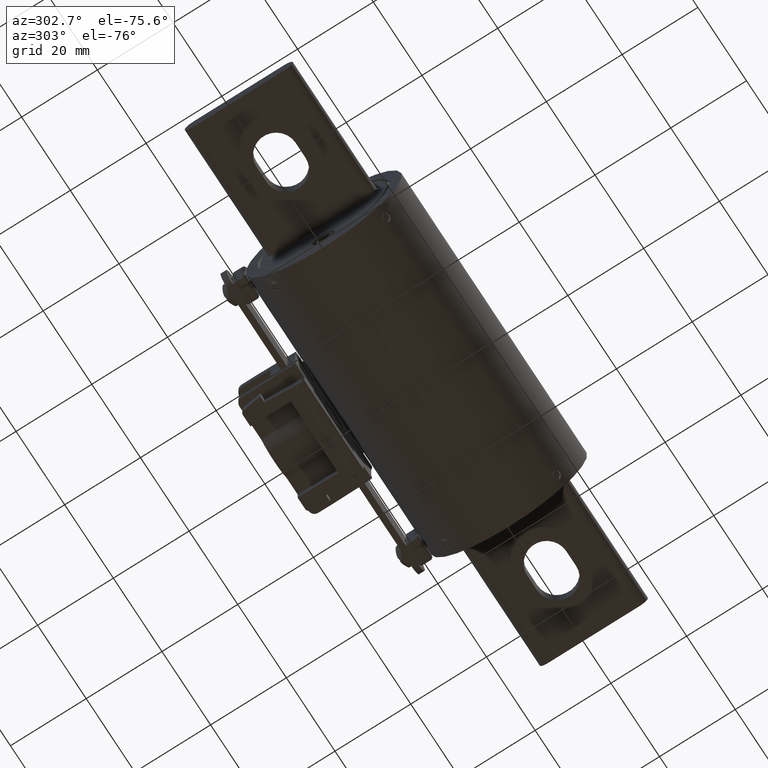
[diagram: clean part render]
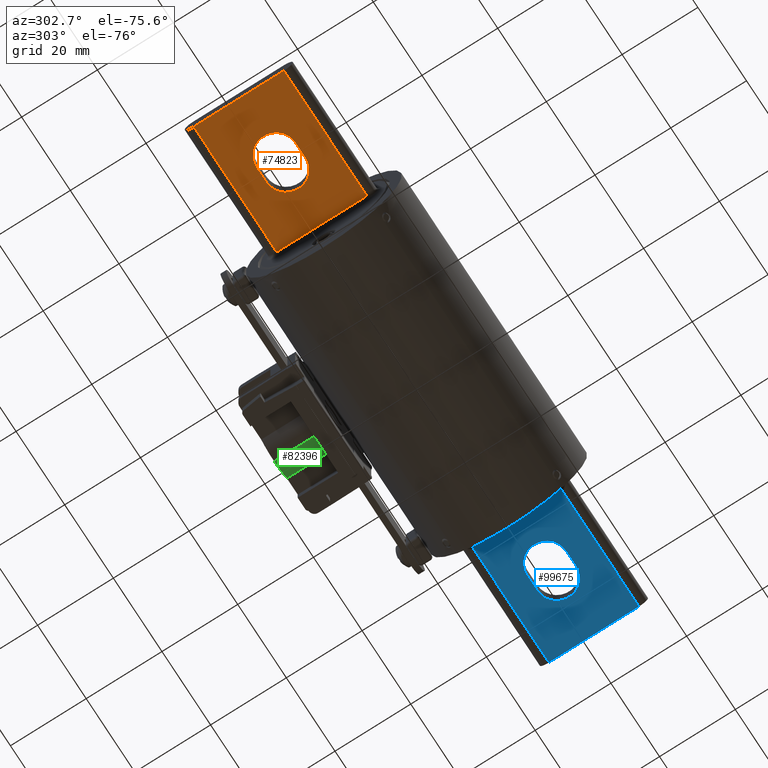
[diagram: same view with three faces highlighted in distinct colors, each labeled with its STEP entity id]
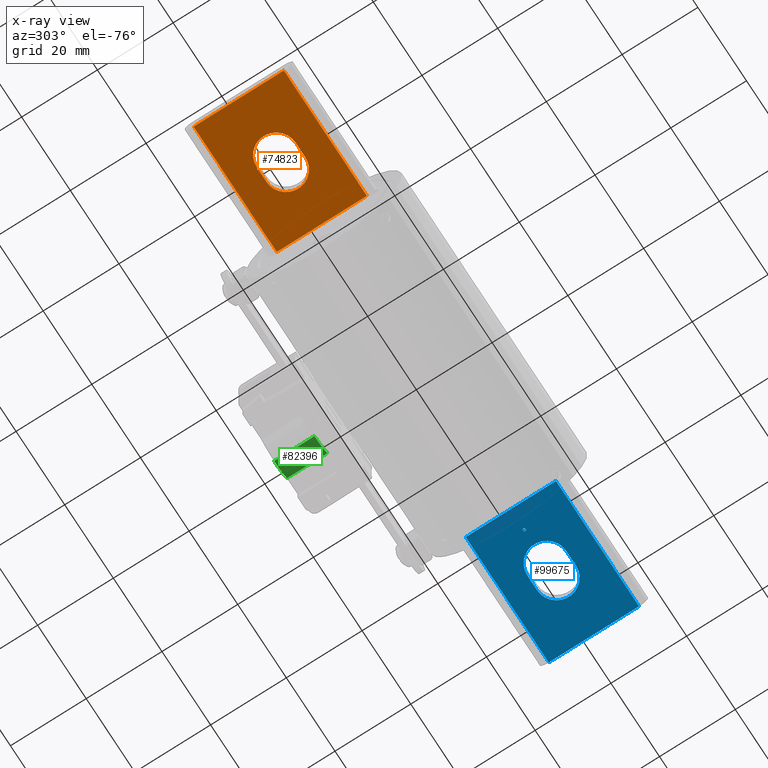
[diagram: x-ray of the same camera — body ghosted, the three highlighted faces saturated]
A machine part, auxiliary view with three faces highlighted in distinct colors.
The next image is the same camera in x-ray (body ghosted, the three faces saturated) — at least one of them is partly hidden behind the body in this view.
Their STEP definitions:

[orange] entity #74823 — the highlighted planar face has unit normal (-0, -0, 1).
#628 = VECTOR ( 'NONE', #32221, 39.37007874015748100 ) ;
#3026 = VERTEX_POINT ( 'NONE', #32492 ) ;
#5287 = DIRECTION ( 'NONE',  ( 4.174190205711356700E-017, -1.000000000000000000, -5.984568338120512500E-017 ) ) ;
#5971 = VERTEX_POINT ( 'NONE', #34322 ) ;
#8815 = DIRECTION ( 'NONE',  ( 4.174190205711356700E-017, -1.000000000000000000, -5.984568338120512500E-017 ) ) ;
#11338 = DIRECTION ( 'NONE',  ( 1.000000000000000000, 4.174190205711362200E-017, 1.236936441474237700E-018 ) ) ;
#13195 = CARTESIAN_POINT ( 'NONE',  ( -2.874999999999996900, -0.4687500000000001100, -0.09375000000000011100 ) ) ;
#13684 = ORIENTED_EDGE ( 'NONE', *, *, #86086, .T. ) ;
#15947 = VERTEX_POINT ( 'NONE', #58143 ) ;
#17710 = VERTEX_POINT ( 'NONE', #62353 ) ;
#18355 = CARTESIAN_POINT ( 'NONE',  ( -2.874999999999996900, 0.4687499999999999400, -0.09375000000000013900 ) ) ;
#18668 = LINE ( 'NONE', #75749, #111742 ) ;
#18979 = ORIENTED_EDGE ( 'NONE', *, *, #80104, .T. ) ;
#21764 = DIRECTION ( 'NONE',  ( -1.000000000000000000, -2.592457232087272300E-016, -1.236936441474251000E-018 ) ) ;
#22234 = AXIS2_PLACEMENT_3D ( 'NONE', #51255, #114277, #60332 ) ;
#22317 = DIRECTION ( 'NONE',  ( -4.174190205711356700E-017, 1.000000000000000000, 5.984568338120512500E-017 ) ) ;
#23205 = CARTESIAN_POINT ( 'NONE',  ( -2.874999999999996900, -0.4687500000000001100, -0.09375000000000011100 ) ) ;
#24765 = LINE ( 'NONE', #23205, #628 ) ;
#26220 = ORIENTED_EDGE ( 'NONE', *, *, #62916, .T. ) ;
#29561 = EDGE_CURVE ( 'NONE', #5971, #15947, #58464, .T. ) ;
#30968 = PLANE ( 'NONE',  #54704 ) ;
#32221 = DIRECTION ( 'NONE',  ( 1.000000000000000000, 4.174190205711362200E-017, 1.236936441474237700E-018 ) ) ;
#32492 = CARTESIAN_POINT ( 'NONE',  ( -2.268999999999999700, 0.2029999999999999300, -0.09375000000000004200 ) ) ;
#33868 = FACE_BOUND ( 'NONE', #64171, .T. ) ;
#34322 = CARTESIAN_POINT ( 'NONE',  ( -2.268999999999999700, -0.2030000000000000700, -0.09375000000000012500 ) ) ;
#37030 = CARTESIAN_POINT ( 'NONE',  ( -2.268999999999999700, -3.738564854966074600E-017, -0.09375000000000012500 ) ) ;
#40198 = ORIENTED_EDGE ( 'NONE', *, *, #40284, .F. ) ;
#40284 = EDGE_CURVE ( 'NONE', #101492, #17710, #108483, .T. ) ;
#42003 = ORIENTED_EDGE ( 'NONE', *, *, #64888, .F. ) ;
#42338 = VECTOR ( 'NONE', #5287, 39.37007874015748100 ) ;
#44532 = VECTOR ( 'NONE', #8815, 39.37007874015748100 ) ;
#46124 = DIRECTION ( 'NONE',  ( 0.0000000000000000000, 1.000000000000000000, 8.410862049458938700E-017 ) ) ;
#47124 = CIRCLE ( 'NONE', #22234, 0.2029999999999999900 ) ;
#50199 = VERTEX_POINT ( 'NONE', #51513 ) ;
#51255 = CARTESIAN_POINT ( 'NONE',  ( -2.111999999999999700, -3.083216992669390900E-017, -0.09375000000000012500 ) ) ;
#51513 = CARTESIAN_POINT ( 'NONE',  ( -1.530000000000000000, -0.4687500000000000000, -0.09375000000000011100 ) ) ;
#54704 = AXIS2_PLACEMENT_3D ( 'NONE', #13195, #76316, #22317 ) ;
#55093 = FACE_OUTER_BOUND ( 'NONE', #80692, .T. ) ;
#56436 = CARTESIAN_POINT ( 'NONE',  ( -2.874999999999996900, -0.2030000000000001000, -0.09375000000000012500 ) ) ;
#58143 = CARTESIAN_POINT ( 'NONE',  ( -2.111999999999999700, -0.2030000000000000700, -0.09375000000000012500 ) ) ;
#58464 = LINE ( 'NONE', #56436, #103469 ) ;
#59808 = AXIS2_PLACEMENT_3D ( 'NONE', #37030, #100074, #46124 ) ;
#60332 = DIRECTION ( 'NONE',  ( 0.0000000000000000000, 1.000000000000000000, 8.410862049458938700E-017 ) ) ;
#62353 = CARTESIAN_POINT ( 'NONE',  ( -2.874999999999996900, -0.4687500000000001100, -0.09375000000000011100 ) ) ;
#62873 = CARTESIAN_POINT ( 'NONE',  ( -2.111999999999999700, 0.2029999999999999600, -0.09375000000000004200 ) ) ;
#62916 = EDGE_CURVE ( 'NONE', #70997, #50199, #92456, .T. ) ;
#62929 = CARTESIAN_POINT ( 'NONE',  ( -1.530000000000000000, -0.4687500000000000000, -0.09375000000000011100 ) ) ;
#64171 = EDGE_LOOP ( 'NONE', ( #111130, #13684, #103544, #18979 ) ) ;
#64415 = CARTESIAN_POINT ( 'NONE',  ( -1.530000000000000000, 0.4687500000000000000, -0.09375000000000013900 ) ) ;
#64888 = EDGE_CURVE ( 'NONE', #17710, #50199, #24765, .T. ) ;
#70997 = VERTEX_POINT ( 'NONE', #64415 ) ;
#73652 = EDGE_CURVE ( 'NONE', #74837, #3026, #18668, .T. ) ;
#74823 = ADVANCED_FACE ( 'NONE', ( #33868, #55093 ), #30968, .F. ) ;
#74837 = VERTEX_POINT ( 'NONE', #62873 ) ;
#75749 = CARTESIAN_POINT ( 'NONE',  ( -2.874999999999997800, 0.2029999999999997900, -0.09375000000000002800 ) ) ;
#76316 = DIRECTION ( 'NONE',  ( -1.236936441474245800E-018, -5.984568338120512500E-017, 1.000000000000000000 ) ) ;
#78078 = ORIENTED_EDGE ( 'NONE', *, *, #91377, .T. ) ;
#80104 = EDGE_CURVE ( 'NONE', #15947, #74837, #47124, .T. ) ;
#80692 = EDGE_LOOP ( 'NONE', ( #78078, #26220, #42003, #40198 ) ) ;
#86086 = EDGE_CURVE ( 'NONE', #3026, #5971, #109842, .T. ) ;
#90930 = CARTESIAN_POINT ( 'NONE',  ( -2.874999999999996900, 0.4687499999999999400, -0.09375000000000013900 ) ) ;
#91377 = EDGE_CURVE ( 'NONE', #101492, #70997, #91443, .T. ) ;
#91443 = LINE ( 'NONE', #90930, #112657 ) ;
#92456 = LINE ( 'NONE', #62929, #44532 ) ;
#99924 = DIRECTION ( 'NONE',  ( 1.000000000000000000, 4.174190205711362200E-017, 1.236936441474237700E-018 ) ) ;
#100074 = DIRECTION ( 'NONE',  ( -1.236936441474252100E-018, 9.280998250475389900E-017, 1.000000000000000000 ) ) ;
#101492 = VERTEX_POINT ( 'NONE', #18355 ) ;
#103469 = VECTOR ( 'NONE', #11338, 39.37007874015748100 ) ;
#103544 = ORIENTED_EDGE ( 'NONE', *, *, #29561, .T. ) ;
#104236 = CARTESIAN_POINT ( 'NONE',  ( -2.874999999999996900, -0.4687500000000001100, -0.09375000000000011100 ) ) ;
#108483 = LINE ( 'NONE', #104236, #42338 ) ;
#109842 = CIRCLE ( 'NONE', #59808, 0.2029999999999999900 ) ;
#111130 = ORIENTED_EDGE ( 'NONE', *, *, #73652, .T. ) ;
#111742 = VECTOR ( 'NONE', #21764, 39.37007874015748100 ) ;
#112657 = VECTOR ( 'NONE', #99924, 39.37007874015748100 ) ;
#114277 = DIRECTION ( 'NONE',  ( -1.236936441474252100E-018, 9.280998250475389900E-017, 1.000000000000000000 ) ) ;

[blue] entity #99675 — the highlighted planar face has unit normal (-0, 0, 1).
#2368 = DIRECTION ( 'NONE',  ( 0.0000000000000000000, 1.000000000000000000, -2.523258614837675000E-016 ) ) ;
#2919 = VERTEX_POINT ( 'NONE', #103451 ) ;
#3405 = DIRECTION ( 'NONE',  ( 0.0000000000000000000, 1.000000000000000000, 0.0000000000000000000 ) ) ;
#4467 = DIRECTION ( 'NONE',  ( 1.390854543223398400E-017, 1.000000000000000000, -2.454565422307336500E-016 ) ) ;
#7074 = AXIS2_PLACEMENT_3D ( 'NONE', #110452, #56577, #2368 ) ;
#8393 = CARTESIAN_POINT ( 'NONE',  ( 1.530000000000000000, -0.4687500000000015000, -0.09374999999999984700 ) ) ;
#9643 = VECTOR ( 'NONE', #85886, 39.37007874015748100 ) ;
#10329 = EDGE_CURVE ( 'NONE', #2919, #69638, #107560, .T. ) ;
#12525 = EDGE_LOOP ( 'NONE', ( #85658, #23635, #39420, #115108 ) ) ;
#12702 = DIRECTION ( 'NONE',  ( 2.263012901099289200E-018, 1.361826224841635900E-016, -1.000000000000000000 ) ) ;
#13014 = DIRECTION ( 'NONE',  ( -1.000000000000000000, 1.385215645413151900E-017, 1.885844084249406100E-018 ) ) ;
#17373 = AXIS2_PLACEMENT_3D ( 'NONE', #80838, #26861, #89890 ) ;
#17568 = ORIENTED_EDGE ( 'NONE', *, *, #86018, .F. ) ;
#17629 = FACE_BOUND ( 'NONE', #42724, .T. ) ;
#19260 = DIRECTION ( 'NONE',  ( -2.263012901099283400E-018, 2.454565422307336000E-016, 1.000000000000000000 ) ) ;
#19562 = LINE ( 'NONE', #36799, #40738 ) ;
#23635 = ORIENTED_EDGE ( 'NONE', *, *, #36958, .F. ) ;
#23650 = ORIENTED_EDGE ( 'NONE', *, *, #28958, .T. ) ;
#25183 = VERTEX_POINT ( 'NONE', #75150 ) ;
#25297 = CARTESIAN_POINT ( 'NONE',  ( 1.749999999999999600, -0.01500000000000015700, -0.09374999999999988900 ) ) ;
#26167 = ORIENTED_EDGE ( 'NONE', *, *, #86308, .T. ) ;
#26861 = DIRECTION ( 'NONE',  ( 2.263012901099289200E-018, 1.361826224841635900E-016, -1.000000000000000000 ) ) ;
#27999 = VERTEX_POINT ( 'NONE', #34661 ) ;
#28578 = DIRECTION ( 'NONE',  ( 2.263012901099289200E-018, 1.361826224841635900E-016, -1.000000000000000000 ) ) ;
#28958 = EDGE_CURVE ( 'NONE', #61243, #87765, #58800, .T. ) ;
#34661 = CARTESIAN_POINT ( 'NONE',  ( 2.269000000000000100, -0.2030000000000004000, -0.09374999999999987500 ) ) ;
#34962 = VERTEX_POINT ( 'NONE', #60313 ) ;
#36799 = CARTESIAN_POINT ( 'NONE',  ( 2.875000000000000400, -0.4687500000000011700, -0.09374999999999984700 ) ) ;
#36958 = EDGE_CURVE ( 'NONE', #45061, #27999, #84362, .T. ) ;
#38184 = DIRECTION ( 'NONE',  ( 1.000000000000000000, -2.313559776057452900E-016, -1.885844084249364500E-018 ) ) ;
#38720 = VERTEX_POINT ( 'NONE', #53586 ) ;
#39420 = ORIENTED_EDGE ( 'NONE', *, *, #86601, .F. ) ;
#40366 = ORIENTED_EDGE ( 'NONE', *, *, #112069, .F. ) ;
#40738 = VECTOR ( 'NONE', #108920, 39.37007874015748100 ) ;
#41670 = FACE_OUTER_BOUND ( 'NONE', #45635, .T. ) ;
#42724 = EDGE_LOOP ( 'NONE', ( #65899, #17568 ) ) ;
#45061 = VERTEX_POINT ( 'NONE', #83871 ) ;
#45219 = PLANE ( 'NONE',  #96875 ) ;
#45365 = CARTESIAN_POINT ( 'NONE',  ( 2.875000000000000400, 0.4687500000000018900, -0.09374999999999998600 ) ) ;
#45635 = EDGE_LOOP ( 'NONE', ( #26167, #23650, #70637, #40366 ) ) ;
#46298 = VECTOR ( 'NONE', #13014, 39.37007874015748100 ) ;
#47663 = CIRCLE ( 'NONE', #68831, 0.2030000000000005100 ) ;
#53586 = CARTESIAN_POINT ( 'NONE',  ( 2.112000000000000100, 0.2030000000000003700, -0.09374999999999990300 ) ) ;
#56577 = DIRECTION ( 'NONE',  ( 2.263012901099289200E-018, 1.361826224841635900E-016, -1.000000000000000000 ) ) ;
#56994 = LINE ( 'NONE', #45365, #80829 ) ;
#57644 = EDGE_CURVE ( 'NONE', #103179, #38720, #47663, .T. ) ;
#57675 = CARTESIAN_POINT ( 'NONE',  ( 2.875000000000000400, -0.4687500000000011700, -0.09374999999999984700 ) ) ;
#57795 = LINE ( 'NONE', #76925, #9643 ) ;
#58800 = LINE ( 'NONE', #67628, #109374 ) ;
#59822 = AXIS2_PLACEMENT_3D ( 'NONE', #66778, #12702, #3405 ) ;
#60313 = CARTESIAN_POINT ( 'NONE',  ( 2.875000000000000400, -0.4687500000000011700, -0.09374999999999984700 ) ) ;
#61243 = VERTEX_POINT ( 'NONE', #8393 ) ;
#65899 = ORIENTED_EDGE ( 'NONE', *, *, #10329, .F. ) ;
#66778 = CARTESIAN_POINT ( 'NONE',  ( 1.749999999999999600, 1.443270457089868900E-017, -0.09374999999999988900 ) ) ;
#67628 = CARTESIAN_POINT ( 'NONE',  ( 1.530000000000000000, -0.4687500000000015000, -0.09374999999999984700 ) ) ;
#68831 = AXIS2_PLACEMENT_3D ( 'NONE', #82504, #28578, #91606 ) ;
#69638 = VERTEX_POINT ( 'NONE', #25297 ) ;
#70376 = LINE ( 'NONE', #57675, #46298 ) ;
#70637 = ORIENTED_EDGE ( 'NONE', *, *, #84227, .F. ) ;
#73260 = CARTESIAN_POINT ( 'NONE',  ( 2.875000000000000400, -0.4687500000000011700, -0.09374999999999984700 ) ) ;
#75150 = CARTESIAN_POINT ( 'NONE',  ( 2.875000000000000400, 0.4687500000000018900, -0.09374999999999998600 ) ) ;
#76925 = CARTESIAN_POINT ( 'NONE',  ( 2.269000000000000100, -0.2030000000000004000, -0.09374999999999987500 ) ) ;
#77373 = CARTESIAN_POINT ( 'NONE',  ( 1.530000000000000000, 0.4687500000000015000, -0.09374999999999998600 ) ) ;
#80829 = VECTOR ( 'NONE', #99315, 39.37007874015748100 ) ;
#80838 = CARTESIAN_POINT ( 'NONE',  ( 1.749999999999999600, 1.443270457089868900E-017, -0.09374999999999988900 ) ) ;
#82217 = DIRECTION ( 'NONE',  ( -1.390854543223398400E-017, -1.000000000000000000, 2.454565422307336000E-016 ) ) ;
#82504 = CARTESIAN_POINT ( 'NONE',  ( 2.112000000000000100, 4.296008946382560600E-018, -0.09374999999999988900 ) ) ;
#83641 = CARTESIAN_POINT ( 'NONE',  ( 2.112000000000000100, -0.2030000000000003700, -0.09374999999999987500 ) ) ;
#83871 = CARTESIAN_POINT ( 'NONE',  ( 2.269000000000000100, 0.2030000000000003500, -0.09374999999999990300 ) ) ;
#84227 = EDGE_CURVE ( 'NONE', #25183, #87765, #56994, .T. ) ;
#84362 = CIRCLE ( 'NONE', #7074, 0.2030000000000005100 ) ;
#85658 = ORIENTED_EDGE ( 'NONE', *, *, #102186, .F. ) ;
#85886 = DIRECTION ( 'NONE',  ( -1.000000000000000000, 1.385215645413151900E-017, 1.885844084249406100E-018 ) ) ;
#86018 = EDGE_CURVE ( 'NONE', #69638, #2919, #99959, .T. ) ;
#86308 = EDGE_CURVE ( 'NONE', #34962, #61243, #70376, .T. ) ;
#86601 = EDGE_CURVE ( 'NONE', #38720, #45061, #99624, .T. ) ;
#86732 = FACE_BOUND ( 'NONE', #12525, .T. ) ;
#87765 = VERTEX_POINT ( 'NONE', #77373 ) ;
#89890 = DIRECTION ( 'NONE',  ( 0.0000000000000000000, 1.000000000000000000, 0.0000000000000000000 ) ) ;
#91606 = DIRECTION ( 'NONE',  ( 0.0000000000000000000, 1.000000000000000000, -2.523258614837675000E-016 ) ) ;
#96875 = AXIS2_PLACEMENT_3D ( 'NONE', #73260, #19260, #82217 ) ;
#99315 = DIRECTION ( 'NONE',  ( -1.000000000000000000, 1.385215645413151900E-017, 1.885844084249406100E-018 ) ) ;
#99624 = LINE ( 'NONE', #101227, #111024 ) ;
#99675 = ADVANCED_FACE ( 'NONE', ( #17629, #86732, #41670 ), #45219, .F. ) ;
#99959 = CIRCLE ( 'NONE', #17373, 0.01500000000000017100 ) ;
#101227 = CARTESIAN_POINT ( 'NONE',  ( 2.269000000000000100, 0.2030000000000003500, -0.09374999999999990300 ) ) ;
#102186 = EDGE_CURVE ( 'NONE', #27999, #103179, #57795, .T. ) ;
#103179 = VERTEX_POINT ( 'NONE', #83641 ) ;
#103451 = CARTESIAN_POINT ( 'NONE',  ( 1.749999999999999600, 0.01500000000000018300, -0.09374999999999988900 ) ) ;
#107560 = CIRCLE ( 'NONE', #59822, 0.01500000000000017100 ) ;
#108920 = DIRECTION ( 'NONE',  ( 1.390854543223398400E-017, 1.000000000000000000, -2.454565422307336500E-016 ) ) ;
#109374 = VECTOR ( 'NONE', #4467, 39.37007874015748100 ) ;
#110452 = CARTESIAN_POINT ( 'NONE',  ( 2.269000000000000100, 2.121220383083925900E-018, -0.09374999999999988900 ) ) ;
#111024 = VECTOR ( 'NONE', #38184, 39.37007874015748100 ) ;
#112069 = EDGE_CURVE ( 'NONE', #34962, #25183, #19562, .T. ) ;
#115108 = ORIENTED_EDGE ( 'NONE', *, *, #57644, .F. ) ;

[green] entity #82396 — the highlighted cylindrical surface (edge-blend (fillet) strip) has radius 7.9079 mm, axis along (0, -1, 0).
#2970 = EDGE_CURVE ( 'NONE', #55971, #36281, #115337, .T. ) ;
#4889 = DIRECTION ( 'NONE',  ( 0.0000000000000000000, -1.000000000000000000, 0.0000000000000000000 ) ) ;
#6958 = FACE_OUTER_BOUND ( 'NONE', #7845, .T. ) ;
#7845 = EDGE_LOOP ( 'NONE', ( #115870, #48091, #21515, #21173 ) ) ;
#7851 = VERTEX_POINT ( 'NONE', #98779 ) ;
#11289 = AXIS2_PLACEMENT_3D ( 'NONE', #36268, #99278, #45337 ) ;
#13012 = VECTOR ( 'NONE', #81236, 39.37007874015748100 ) ;
#18237 = CARTESIAN_POINT ( 'NONE',  ( 6.402768735150616900E-018, 2.248511650866130000, -0.3113347155278811700 ) ) ;
#20621 = CARTESIAN_POINT ( 'NONE',  ( 0.2076263646641026400, 1.059021418801261700, -0.2319926675332559500 ) ) ;
#21173 = ORIENTED_EDGE ( 'NONE', *, *, #109020, .T. ) ;
#21515 = ORIENTED_EDGE ( 'NONE', *, *, #2970, .T. ) ;
#27993 = CARTESIAN_POINT ( 'NONE',  ( 6.402768735150616900E-018, 1.059021418801261700, 8.537024980200822600E-018 ) ) ;
#29381 = DIRECTION ( 'NONE',  ( 0.0000000000000000000, 0.0000000000000000000, -1.000000000000000000 ) ) ;
#36268 = CARTESIAN_POINT ( 'NONE',  ( 6.402768735150616900E-018, 1.479021418801261600, 8.537024980200822600E-018 ) ) ;
#36281 = VERTEX_POINT ( 'NONE', #20621 ) ;
#37022 = DIRECTION ( 'NONE',  ( 0.0000000000000000000, 0.0000000000000000000, 1.000000000000000000 ) ) ;
#38013 = CARTESIAN_POINT ( 'NONE',  ( 6.402768735150616900E-018, 2.248511650866130000, 8.537024980200822600E-018 ) ) ;
#45337 = DIRECTION ( 'NONE',  ( 0.0000000000000000000, 0.0000000000000000000, -1.000000000000000000 ) ) ;
#48091 = ORIENTED_EDGE ( 'NONE', *, *, #86051, .T. ) ;
#48703 = CIRCLE ( 'NONE', #53094, 0.3113347155278811700 ) ;
#49883 = CARTESIAN_POINT ( 'NONE',  ( 0.2076263646641026400, 2.248511650866130000, -0.2319926675332559500 ) ) ;
#53094 = AXIS2_PLACEMENT_3D ( 'NONE', #27993, #91050, #37022 ) ;
#55971 = VERTEX_POINT ( 'NONE', #76633 ) ;
#70066 = AXIS2_PLACEMENT_3D ( 'NONE', #38013, #101064, #29381 ) ;
#76129 = CIRCLE ( 'NONE', #11289, 0.3113347155278811700 ) ;
#76633 = CARTESIAN_POINT ( 'NONE',  ( 0.2076263646641026400, 1.479021418801261600, -0.2319926675332559500 ) ) ;
#81197 = EDGE_CURVE ( 'NONE', #7851, #98932, #84891, .T. ) ;
#81236 = DIRECTION ( 'NONE',  ( 0.0000000000000000000, -1.000000000000000000, 0.0000000000000000000 ) ) ;
#82396 = ADVANCED_FACE ( 'NONE', ( #6958 ), #109843, .T. ) ;
#84891 = LINE ( 'NONE', #18237, #13012 ) ;
#86051 = EDGE_CURVE ( 'NONE', #7851, #55971, #76129, .T. ) ;
#91050 = DIRECTION ( 'NONE',  ( 0.0000000000000000000, 1.000000000000000000, -0.0000000000000000000 ) ) ;
#98779 = CARTESIAN_POINT ( 'NONE',  ( 6.402768735150616900E-018, 1.479021418801261600, -0.3113347155278811700 ) ) ;
#98932 = VERTEX_POINT ( 'NONE', #110238 ) ;
#99278 = DIRECTION ( 'NONE',  ( 0.0000000000000000000, -1.000000000000000000, -5.012027464914204000E-017 ) ) ;
#101064 = DIRECTION ( 'NONE',  ( 0.0000000000000000000, -1.000000000000000000, 0.0000000000000000000 ) ) ;
#109020 = EDGE_CURVE ( 'NONE', #36281, #98932, #48703, .T. ) ;
#109843 = CYLINDRICAL_SURFACE ( 'NONE', #70066, 0.3113347155278811700 ) ;
#110238 = CARTESIAN_POINT ( 'NONE',  ( 6.402768735150616900E-018, 1.059021418801261700, -0.3113347155278811700 ) ) ;
#112493 = VECTOR ( 'NONE', #4889, 39.37007874015748100 ) ;
#115337 = LINE ( 'NONE', #49883, #112493 ) ;
#115870 = ORIENTED_EDGE ( 'NONE', *, *, #81197, .F. ) ;